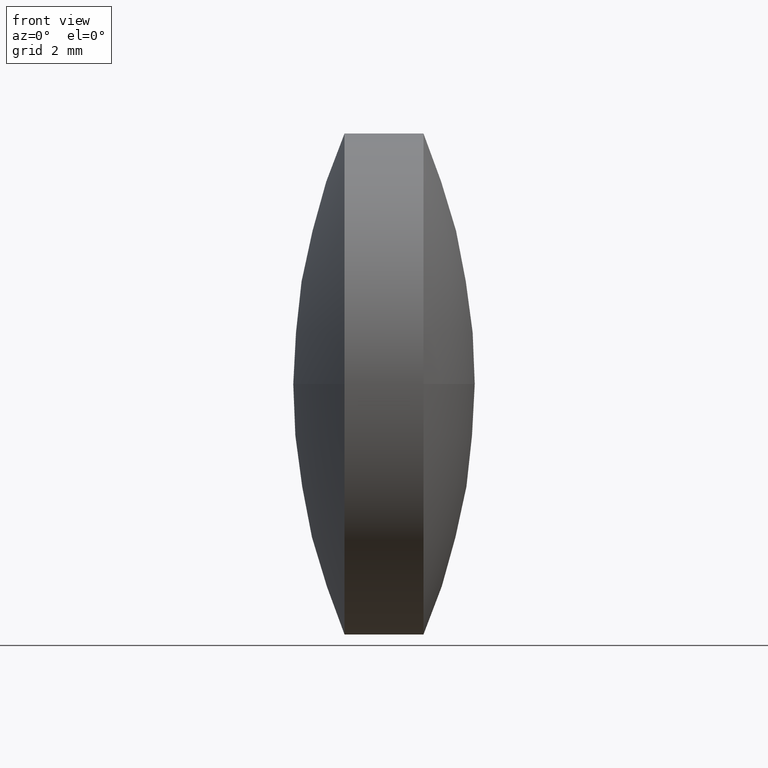
[diagram: clean part render]
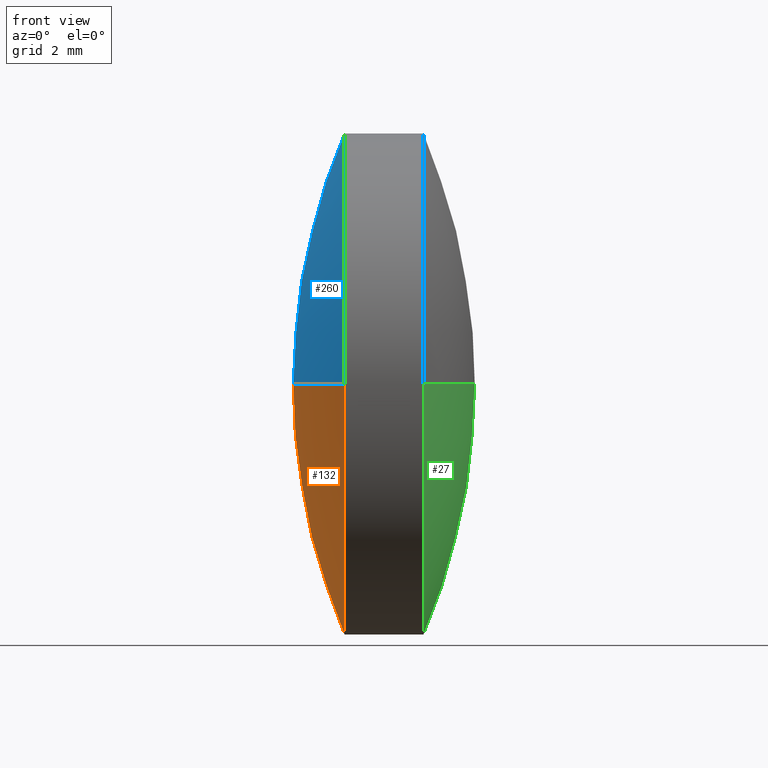
[diagram: same view with three faces highlighted in distinct colors, each labeled with its STEP entity id]
A machine part, front view with three faces highlighted in distinct colors.
Their STEP definitions:

[orange] entity #132 — the highlighted spherical surface has radius 16.1594 mm.
#6 = FACE_OUTER_BOUND ( 'NONE', #282, .T. ) ;
#11 = AXIS2_PLACEMENT_3D ( 'NONE', #108, #128, #316 ) ;
#13 = EDGE_CURVE ( 'NONE', #26, #312, #109, .T. ) ;
#17 = ORIENTED_EDGE ( 'NONE', *, *, #117, .F. ) ;
#26 = VERTEX_POINT ( 'NONE', #286 ) ;
#35 = CARTESIAN_POINT ( 'NONE',  ( 42.22906260161698100, 24.30805651159239000, 0.0000000000000000000 ) ) ;
#40 = VERTEX_POINT ( 'NONE', #283 ) ;
#58 = AXIS2_PLACEMENT_3D ( 'NONE', #35, #111, #261 ) ;
#68 = EDGE_CURVE ( 'NONE', #155, #40, #170, .T. ) ;
#70 = SPHERICAL_SURFACE ( 'NONE', #98, 16.15938865267676400 ) ;
#86 = DIRECTION ( 'NONE',  ( -0.0000000000000000000, 0.0000000000000000000, -1.000000000000000000 ) ) ;
#90 = CARTESIAN_POINT ( 'NONE',  ( 42.22906260161698100, 24.30805651159239000, -6.349999999999997900 ) ) ;
#98 = AXIS2_PLACEMENT_3D ( 'NONE', #159, #86, #233 ) ;
#108 = CARTESIAN_POINT ( 'NONE',  ( 57.08851554000803900, 24.30805651159238700, 0.0000000000000000000 ) ) ;
#109 = CIRCLE ( 'NONE', #112, 6.349999999999997900 ) ;
#111 = DIRECTION ( 'NONE',  ( -1.000000000000000000, -0.0000000000000000000, -0.0000000000000000000 ) ) ;
#112 = AXIS2_PLACEMENT_3D ( 'NONE', #228, #339, #281 ) ;
#113 = CARTESIAN_POINT ( 'NONE',  ( 42.22906260161698100, 17.95805651159239200, -7.776507174585689200E-016 ) ) ;
#117 = EDGE_CURVE ( 'NONE', #26, #40, #334, .T. ) ;
#128 = DIRECTION ( 'NONE',  ( 0.0000000000000000000, 1.224646799147353200E-016, -1.000000000000000000 ) ) ;
#129 = EDGE_CURVE ( 'NONE', #312, #155, #192, .T. ) ;
#132 = ADVANCED_FACE ( 'NONE', ( #6 ), #70, .T. ) ;
#143 = AXIS2_PLACEMENT_3D ( 'NONE', #265, #234, #295 ) ;
#155 = VERTEX_POINT ( 'NONE', #113 ) ;
#159 = CARTESIAN_POINT ( 'NONE',  ( 57.08851554000803900, 24.30805651159238700, 0.0000000000000000000 ) ) ;
#167 = ORIENTED_EDGE ( 'NONE', *, *, #129, .T. ) ;
#170 = CIRCLE ( 'NONE', #11, 16.15938865267676400 ) ;
#175 = ORIENTED_EDGE ( 'NONE', *, *, #13, .T. ) ;
#192 = CIRCLE ( 'NONE', #58, 6.349999999999997900 ) ;
#228 = CARTESIAN_POINT ( 'NONE',  ( 42.22906260161698100, 24.30805651159239000, 0.0000000000000000000 ) ) ;
#233 = DIRECTION ( 'NONE',  ( 0.0000000000000000000, 1.000000000000000000, 0.0000000000000000000 ) ) ;
#234 = DIRECTION ( 'NONE',  ( -0.0000000000000000000, 0.0000000000000000000, 1.000000000000000000 ) ) ;
#261 = DIRECTION ( 'NONE',  ( 0.0000000000000000000, 0.0000000000000000000, 1.000000000000000000 ) ) ;
#265 = CARTESIAN_POINT ( 'NONE',  ( 57.08851554000803900, 24.30805651159238700, 0.0000000000000000000 ) ) ;
#271 = ORIENTED_EDGE ( 'NONE', *, *, #68, .T. ) ;
#281 = DIRECTION ( 'NONE',  ( 0.0000000000000000000, 0.0000000000000000000, 1.000000000000000000 ) ) ;
#282 = EDGE_LOOP ( 'NONE', ( #175, #167, #271, #17 ) ) ;
#283 = CARTESIAN_POINT ( 'NONE',  ( 40.92912688733127200, 24.30805651159238700, 0.0000000000000000000 ) ) ;
#286 = CARTESIAN_POINT ( 'NONE',  ( 42.22906260161698100, 30.65805651159238800, 0.0000000000000000000 ) ) ;
#295 = DIRECTION ( 'NONE',  ( 1.000000000000000000, 0.0000000000000000000, 0.0000000000000000000 ) ) ;
#312 = VERTEX_POINT ( 'NONE', #90 ) ;
#316 = DIRECTION ( 'NONE',  ( 0.0000000000000000000, 1.000000000000000000, 1.224646799147353200E-016 ) ) ;
#334 = CIRCLE ( 'NONE', #143, 16.15938865267676400 ) ;
#339 = DIRECTION ( 'NONE',  ( -1.000000000000000000, -0.0000000000000000000, -0.0000000000000000000 ) ) ;

[blue] entity #260 — the highlighted spherical surface has radius 16.1594 mm.
#2 = CARTESIAN_POINT ( 'NONE',  ( 42.22906260161698100, 24.30805651159239000, 0.0000000000000000000 ) ) ;
#11 = AXIS2_PLACEMENT_3D ( 'NONE', #108, #128, #316 ) ;
#19 = SPHERICAL_SURFACE ( 'NONE', #166, 16.15938865267676400 ) ;
#26 = VERTEX_POINT ( 'NONE', #286 ) ;
#28 = CARTESIAN_POINT ( 'NONE',  ( 57.08851554000803900, 24.30805651159238700, 0.0000000000000000000 ) ) ;
#40 = VERTEX_POINT ( 'NONE', #283 ) ;
#43 = AXIS2_PLACEMENT_3D ( 'NONE', #258, #88, #57 ) ;
#49 = CIRCLE ( 'NONE', #173, 6.349999999999997900 ) ;
#57 = DIRECTION ( 'NONE',  ( 0.0000000000000000000, 0.0000000000000000000, 1.000000000000000000 ) ) ;
#68 = EDGE_CURVE ( 'NONE', #155, #40, #170, .T. ) ;
#88 = DIRECTION ( 'NONE',  ( -1.000000000000000000, -0.0000000000000000000, -0.0000000000000000000 ) ) ;
#104 = ORIENTED_EDGE ( 'NONE', *, *, #117, .T. ) ;
#108 = CARTESIAN_POINT ( 'NONE',  ( 57.08851554000803900, 24.30805651159238700, 0.0000000000000000000 ) ) ;
#113 = CARTESIAN_POINT ( 'NONE',  ( 42.22906260161698100, 17.95805651159239200, -7.776507174585689200E-016 ) ) ;
#117 = EDGE_CURVE ( 'NONE', #26, #40, #334, .T. ) ;
#119 = EDGE_CURVE ( 'NONE', #155, #237, #274, .T. ) ;
#128 = DIRECTION ( 'NONE',  ( 0.0000000000000000000, 1.224646799147353200E-016, -1.000000000000000000 ) ) ;
#143 = AXIS2_PLACEMENT_3D ( 'NONE', #265, #234, #295 ) ;
#155 = VERTEX_POINT ( 'NONE', #113 ) ;
#166 = AXIS2_PLACEMENT_3D ( 'NONE', #28, #211, #182 ) ;
#170 = CIRCLE ( 'NONE', #11, 16.15938865267676400 ) ;
#171 = ORIENTED_EDGE ( 'NONE', *, *, #119, .T. ) ;
#173 = AXIS2_PLACEMENT_3D ( 'NONE', #2, #236, #213 ) ;
#182 = DIRECTION ( 'NONE',  ( 0.0000000000000000000, 1.000000000000000000, 0.0000000000000000000 ) ) ;
#197 = EDGE_CURVE ( 'NONE', #237, #26, #49, .T. ) ;
#211 = DIRECTION ( 'NONE',  ( -0.0000000000000000000, 0.0000000000000000000, -1.000000000000000000 ) ) ;
#213 = DIRECTION ( 'NONE',  ( 0.0000000000000000000, 0.0000000000000000000, 1.000000000000000000 ) ) ;
#232 = EDGE_LOOP ( 'NONE', ( #329, #171, #342, #104 ) ) ;
#234 = DIRECTION ( 'NONE',  ( -0.0000000000000000000, 0.0000000000000000000, 1.000000000000000000 ) ) ;
#236 = DIRECTION ( 'NONE',  ( -1.000000000000000000, -0.0000000000000000000, -0.0000000000000000000 ) ) ;
#237 = VERTEX_POINT ( 'NONE', #341 ) ;
#253 = FACE_OUTER_BOUND ( 'NONE', #232, .T. ) ;
#258 = CARTESIAN_POINT ( 'NONE',  ( 42.22906260161698100, 24.30805651159239000, 0.0000000000000000000 ) ) ;
#260 = ADVANCED_FACE ( 'NONE', ( #253 ), #19, .T. ) ;
#265 = CARTESIAN_POINT ( 'NONE',  ( 57.08851554000803900, 24.30805651159238700, 0.0000000000000000000 ) ) ;
#274 = CIRCLE ( 'NONE', #43, 6.349999999999997900 ) ;
#283 = CARTESIAN_POINT ( 'NONE',  ( 40.92912688733127200, 24.30805651159238700, 0.0000000000000000000 ) ) ;
#286 = CARTESIAN_POINT ( 'NONE',  ( 42.22906260161698100, 30.65805651159238800, 0.0000000000000000000 ) ) ;
#295 = DIRECTION ( 'NONE',  ( 1.000000000000000000, 0.0000000000000000000, 0.0000000000000000000 ) ) ;
#316 = DIRECTION ( 'NONE',  ( 0.0000000000000000000, 1.000000000000000000, 1.224646799147353200E-016 ) ) ;
#329 = ORIENTED_EDGE ( 'NONE', *, *, #68, .F. ) ;
#334 = CIRCLE ( 'NONE', #143, 16.15938865267676400 ) ;
#341 = CARTESIAN_POINT ( 'NONE',  ( 42.22906260161698100, 24.30805651159239000, 6.349999999999997900 ) ) ;
#342 = ORIENTED_EDGE ( 'NONE', *, *, #197, .T. ) ;

[green] entity #27 — the highlighted spherical surface has radius 16.1594 mm.
#15 = DIRECTION ( 'NONE',  ( -1.000000000000000000, 0.0000000000000000000, 0.0000000000000000000 ) ) ;
#18 = DIRECTION ( 'NONE',  ( 0.0000000000000000000, 0.0000000000000000000, 1.000000000000000000 ) ) ;
#20 = CARTESIAN_POINT ( 'NONE',  ( 44.22913117304555200, 24.30805651159239000, 0.0000000000000000000 ) ) ;
#22 = DIRECTION ( 'NONE',  ( -1.000000000000000000, -0.0000000000000000000, -0.0000000000000000000 ) ) ;
#23 = EDGE_CURVE ( 'NONE', #148, #288, #187, .T. ) ;
#27 = ADVANCED_FACE ( 'NONE', ( #311 ), #65, .T. ) ;
#34 = CIRCLE ( 'NONE', #73, 16.15938865267670000 ) ;
#51 = EDGE_CURVE ( 'NONE', #212, #288, #121, .T. ) ;
#54 = DIRECTION ( 'NONE',  ( 0.0000000000000000000, 0.0000000000000000000, -1.000000000000000000 ) ) ;
#55 = CARTESIAN_POINT ( 'NONE',  ( 29.36967823465456800, 24.30805651159240100, 0.0000000000000000000 ) ) ;
#61 = CARTESIAN_POINT ( 'NONE',  ( 44.22913117304555200, 30.65805651159239500, 7.776507174585687200E-016 ) ) ;
#64 = DIRECTION ( 'NONE',  ( -1.000000000000000000, -0.0000000000000000000, -0.0000000000000000000 ) ) ;
#65 = SPHERICAL_SURFACE ( 'NONE', #280, 16.15938865267670000 ) ;
#73 = AXIS2_PLACEMENT_3D ( 'NONE', #319, #205, #344 ) ;
#76 = ORIENTED_EDGE ( 'NONE', *, *, #23, .F. ) ;
#77 = AXIS2_PLACEMENT_3D ( 'NONE', #181, #64, #158 ) ;
#100 = EDGE_LOOP ( 'NONE', ( #193, #206, #76, #131 ) ) ;
#121 = CIRCLE ( 'NONE', #123, 16.15938865267670000 ) ;
#123 = AXIS2_PLACEMENT_3D ( 'NONE', #125, #54, #15 ) ;
#125 = CARTESIAN_POINT ( 'NONE',  ( 29.36967823465456800, 24.30805651159240100, 0.0000000000000000000 ) ) ;
#131 = ORIENTED_EDGE ( 'NONE', *, *, #168, .F. ) ;
#133 = CARTESIAN_POINT ( 'NONE',  ( 45.52906688733126800, 24.30805651159240100, 0.0000000000000000000 ) ) ;
#148 = VERTEX_POINT ( 'NONE', #293 ) ;
#158 = DIRECTION ( 'NONE',  ( 0.0000000000000000000, 0.0000000000000000000, 1.000000000000000000 ) ) ;
#168 = EDGE_CURVE ( 'NONE', #183, #148, #297, .T. ) ;
#181 = CARTESIAN_POINT ( 'NONE',  ( 44.22913117304555200, 24.30805651159239000, 0.0000000000000000000 ) ) ;
#183 = VERTEX_POINT ( 'NONE', #61 ) ;
#187 = CIRCLE ( 'NONE', #289, 6.349999999999997900 ) ;
#193 = ORIENTED_EDGE ( 'NONE', *, *, #270, .F. ) ;
#205 = DIRECTION ( 'NONE',  ( 0.0000000000000000000, -1.224646799147353200E-016, 1.000000000000000000 ) ) ;
#206 = ORIENTED_EDGE ( 'NONE', *, *, #51, .T. ) ;
#212 = VERTEX_POINT ( 'NONE', #133 ) ;
#255 = DIRECTION ( 'NONE',  ( 0.0000000000000000000, -1.000000000000000000, 0.0000000000000000000 ) ) ;
#256 = DIRECTION ( 'NONE',  ( 0.0000000000000000000, 0.0000000000000000000, 1.000000000000000000 ) ) ;
#270 = EDGE_CURVE ( 'NONE', #212, #183, #34, .T. ) ;
#280 = AXIS2_PLACEMENT_3D ( 'NONE', #55, #18, #255 ) ;
#288 = VERTEX_POINT ( 'NONE', #291 ) ;
#289 = AXIS2_PLACEMENT_3D ( 'NONE', #20, #22, #256 ) ;
#291 = CARTESIAN_POINT ( 'NONE',  ( 44.22913117304555200, 17.95805651159239600, 0.0000000000000000000 ) ) ;
#293 = CARTESIAN_POINT ( 'NONE',  ( 44.22913117304555200, 24.30805651159239000, -6.349999999999997900 ) ) ;
#297 = CIRCLE ( 'NONE', #77, 6.349999999999997900 ) ;
#311 = FACE_OUTER_BOUND ( 'NONE', #100, .T. ) ;
#319 = CARTESIAN_POINT ( 'NONE',  ( 29.36967823465456800, 24.30805651159240100, 0.0000000000000000000 ) ) ;
#344 = DIRECTION ( 'NONE',  ( 0.0000000000000000000, -1.000000000000000000, -1.224646799147353200E-016 ) ) ;